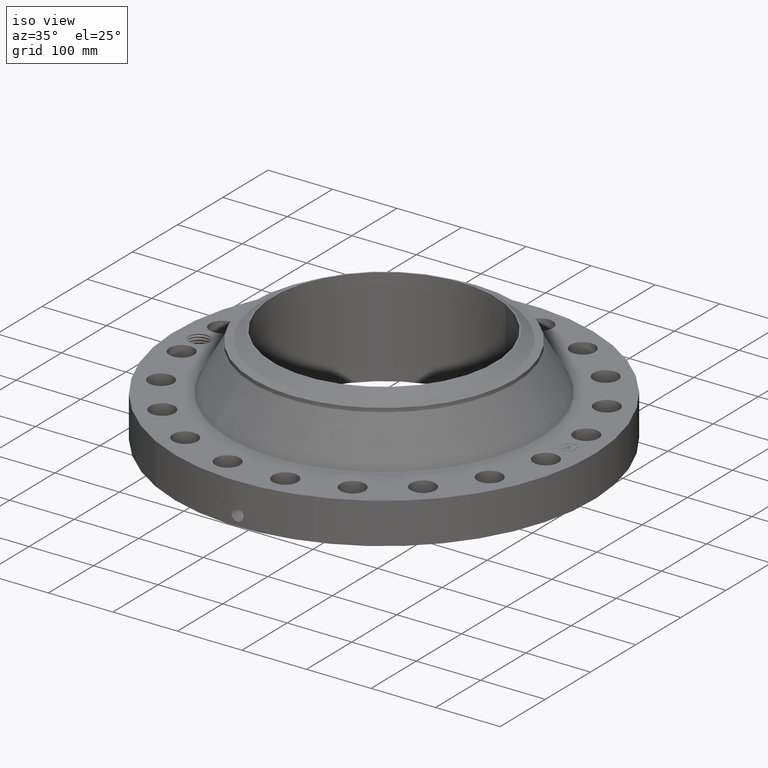
[diagram: clean part render]
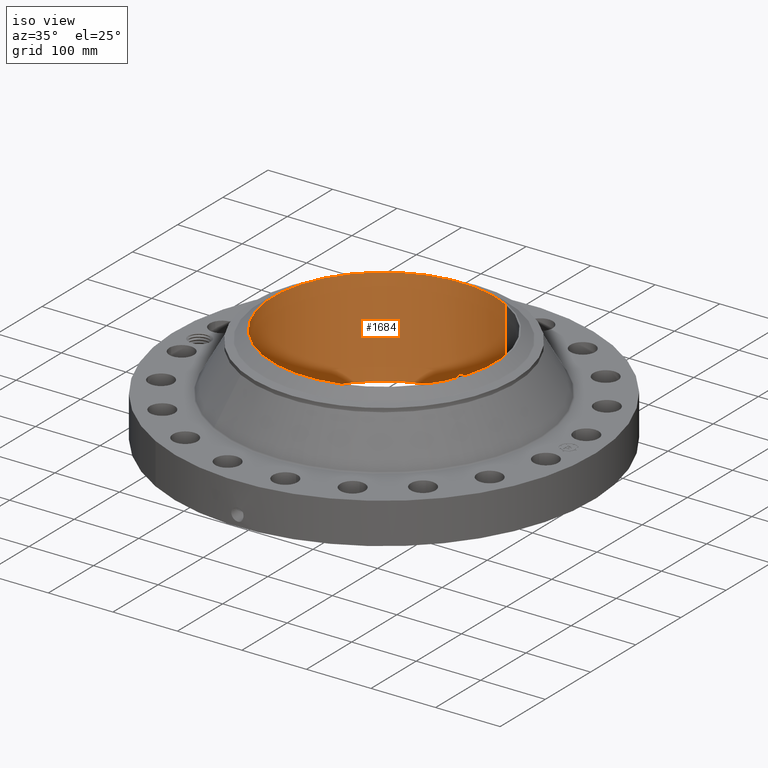
[diagram: same view with one face highlighted and labeled with its STEP entity id]
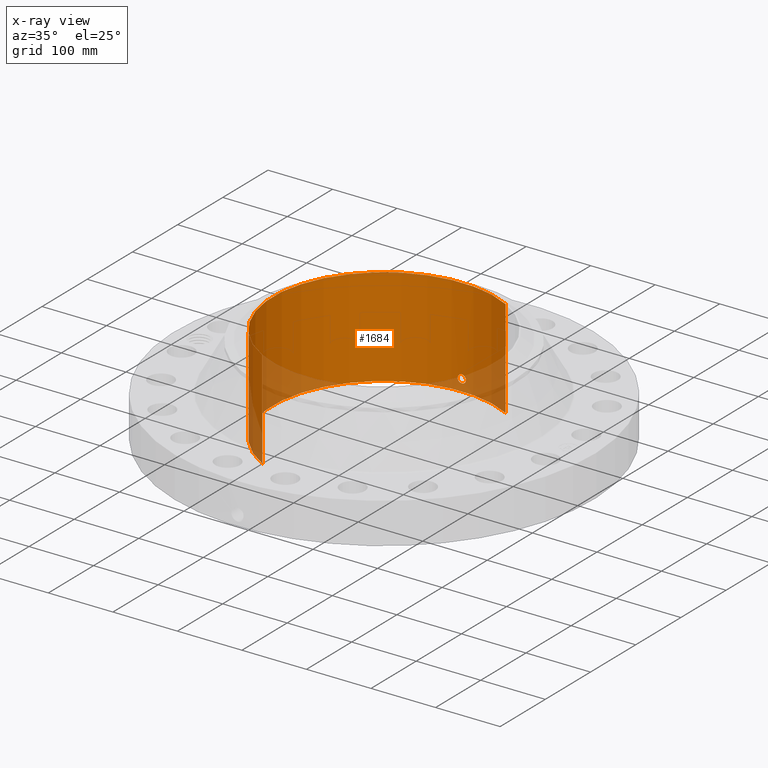
[diagram: x-ray of the same camera — body ghosted, the highlighted face saturated]
A machine part, iso view. The second image highlights one B-rep face of the part: STEP entity #1684.
The next image is the same camera in x-ray: the body ghosted, the highlighted face saturated — about 14% of this face is hidden behind the body in this view.
In plain terms, the highlighted cylindrical surface (partial cylindrical patch) has radius 172.237 mm, axis along (0, 0, -1).
Its self-contained STEP definition (entity closure, byte-faithful):
#262=AXIS2_PLACEMENT_3D('Circle Axis2P3D',#260,#261,$) ;
#1561=AXIS2_PLACEMENT_3D('Cylinder Axis2P3D',#1558,#1559,#1560) ;
#1633=AXIS2_PLACEMENT_3D('Circle Axis2P3D',#1631,#1632,$) ;
#255=CARTESIAN_POINT('Vertex',(3.25098457729,5.9508873522,0.250000000001)) ;
#257=CARTESIAN_POINT('Vertex',(-3.25098457729,-5.9508873522,0.250000000001)) ;
#260=CARTESIAN_POINT('Axis2P3D Location',(0.,0.,0.250000000001)) ;
#1558=CARTESIAN_POINT('Axis2P3D Location',(0.,0.,3.25000000001)) ;
#1567=CARTESIAN_POINT('Vertex',(3.25098457729,5.9508873522,6.25000000002)) ;
#1569=CARTESIAN_POINT('Vertex',(-3.25098457729,-5.9508873522,6.25000000002)) ;
#1572=CARTESIAN_POINT('Line Origine',(3.25098457729,5.9508873522,3.25000000001)) ;
#1577=CARTESIAN_POINT('Line Origine',(-3.25098457729,-5.9508873522,3.25000000001)) ;
#1631=CARTESIAN_POINT('Axis2P3D Location',(0.,0.,6.25000000002)) ;
#1643=CARTESIAN_POINT('Control Point',(0.219395640473,6.7774498562,1.05985638466)) ;
#1644=CARTESIAN_POINT('Control Point',(0.194443648014,6.7782575875,1.10553070049)) ;
#1645=CARTESIAN_POINT('Control Point',(0.157607961708,6.77933506077,1.14470806856)) ;
#1646=CARTESIAN_POINT('Control Point',(0.111114949995,6.78038282213,1.17324017908)) ;
#1647=CARTESIAN_POINT('Control Point',(0.0336823618022,6.78121650962,1.19588127452)) ;
#1648=CARTESIAN_POINT('Control Point',(-0.0446610663606,6.7809285355,1.18805774379)) ;
#1649=CARTESIAN_POINT('Control Point',(-0.070287996878,6.78070497048,1.18204691775)) ;
#1650=CARTESIAN_POINT('Control Point',(-0.143940622501,6.7797169136,1.15422131874)) ;
#1651=CARTESIAN_POINT('Control Point',(-0.2032258772,6.77810387152,1.09951830438)) ;
#1652=CARTESIAN_POINT('Control Point',(-0.232195151277,6.77704557182,1.05328750027)) ;
#1653=CARTESIAN_POINT('Control Point',(-0.255838039687,6.77617515109,0.975137503676)) ;
#1654=CARTESIAN_POINT('Control Point',(-0.24828715891,6.77645290846,0.895764716969)) ;
#1655=CARTESIAN_POINT('Control Point',(-0.242053278353,6.776685565,0.869195213928)) ;
#1656=CARTESIAN_POINT('Control Point',(-0.232318166375,6.77703153575,0.843798140348)) ;
#1657=CARTESIAN_POINT('Control Point',(-0.219395640473,6.7774498562,0.820143615352)) ;
#1658=CARTESIAN_POINT('Vertex',(0.219395640473,6.7774498562,1.05985638466)) ;
#1660=CARTESIAN_POINT('Vertex',(-0.219395640473,6.7774498562,0.820143615352)) ;
#1664=CARTESIAN_POINT('Control Point',(-0.219395640473,6.7774498562,0.820143615352)) ;
#1665=CARTESIAN_POINT('Control Point',(-0.194443648021,6.7782575875,0.774469299535)) ;
#1666=CARTESIAN_POINT('Control Point',(-0.157607961729,6.77933506076,0.735291931471)) ;
#1667=CARTESIAN_POINT('Control Point',(-0.111114949967,6.78038282213,0.706759820918)) ;
#1668=CARTESIAN_POINT('Control Point',(-0.0336823617947,6.78121650962,0.684118725491)) ;
#1669=CARTESIAN_POINT('Control Point',(0.0446610663465,6.7809285355,0.691942256213)) ;
#1670=CARTESIAN_POINT('Control Point',(0.0702879968899,6.78070497048,0.697953082264)) ;
#1671=CARTESIAN_POINT('Control Point',(0.143940622578,6.7797169136,0.725778681304)) ;
#1672=CARTESIAN_POINT('Control Point',(0.203225877315,6.77810387152,0.780481695736)) ;
#1673=CARTESIAN_POINT('Control Point',(0.23219515123,6.77704557182,0.826712499591)) ;
#1674=CARTESIAN_POINT('Control Point',(0.255838039677,6.77617515109,0.904862496197)) ;
#1675=CARTESIAN_POINT('Control Point',(0.24828715892,6.77645290846,0.984235282924)) ;
#1676=CARTESIAN_POINT('Control Point',(0.242053278312,6.776685565,1.01080478619)) ;
#1677=CARTESIAN_POINT('Control Point',(0.232318166347,6.77703153576,1.03620185971)) ;
#1678=CARTESIAN_POINT('Control Point',(0.219395640473,6.7774498562,1.05985638466)) ;
#261=DIRECTION('Axis2P3D Direction',(0.,0.,-0.0393700787402)) ;
#1559=DIRECTION('Axis2P3D Direction',(0.,0.,-0.0393700787402)) ;
#1560=DIRECTION('Axis2P3D XDirection',(-0.0188750212049,-0.0345504945626,0.)) ;
#1573=DIRECTION('Vector Direction',(0.,0.,-0.0393700787402)) ;
#1578=DIRECTION('Vector Direction',(0.,0.,-0.0393700787402)) ;
#1632=DIRECTION('Axis2P3D Direction',(0.,0.,-0.0393700787402)) ;
#1574=VECTOR('Line Direction',#1573,0.0393700787402) ;
#1579=VECTOR('Line Direction',#1578,0.0393700787402) ;
#1637=ORIENTED_EDGE('',*,*,#1635,.F.) ;
#1638=ORIENTED_EDGE('',*,*,#1581,.T.) ;
#1639=ORIENTED_EDGE('',*,*,#264,.T.) ;
#1640=ORIENTED_EDGE('',*,*,#1576,.F.) ;
#1681=ORIENTED_EDGE('',*,*,#1662,.F.) ;
#1682=ORIENTED_EDGE('',*,*,#1679,.F.) ;
#1683=FACE_BOUND('',#1680,.T.) ;
#1684=ADVANCED_FACE('PartBody',(#1641,#1683),#1562,.F.) ;
#1642=B_SPLINE_CURVE_WITH_KNOTS('',5,(#1643,#1644,#1645,#1646,#1647,#1648,#1649,#1650,#1651,#1652,#1653,#1654,#1655,#1656,#1657),.UNSPECIFIED.,.F.,.U.,(6,3,3,3,6),(0.,9.34878302461,14.0226119886,23.3726313278,28.2143244701),.UNSPECIFIED.) ;
#1663=B_SPLINE_CURVE_WITH_KNOTS('',5,(#1664,#1665,#1666,#1667,#1668,#1669,#1670,#1671,#1672,#1673,#1674,#1675,#1676,#1677,#1678),.UNSPECIFIED.,.F.,.U.,(6,3,3,3,6),(0.,9.34878302198,14.0226119848,23.3726313376,28.2143244697),.UNSPECIFIED.) ;
#263=CIRCLE('generated circle',#262,6.78100000003) ;
#1634=CIRCLE('generated circle',#1633,6.78100000003) ;
#1562=CYLINDRICAL_SURFACE('generated cylinder',#1561,6.78100000003) ;
#264=EDGE_CURVE('',#258,#256,#263,.T.) ;
#1576=EDGE_CURVE('',#1568,#256,#1575,.T.) ;
#1581=EDGE_CURVE('',#1570,#258,#1580,.T.) ;
#1635=EDGE_CURVE('',#1570,#1568,#1634,.T.) ;
#1662=EDGE_CURVE('',#1659,#1661,#1642,.T.) ;
#1679=EDGE_CURVE('',#1661,#1659,#1663,.T.) ;
#1636=EDGE_LOOP('',(#1637,#1638,#1639,#1640)) ;
#1680=EDGE_LOOP('',(#1681,#1682)) ;
#1641=FACE_OUTER_BOUND('',#1636,.T.) ;
#1575=LINE('Line',#1572,#1574) ;
#1580=LINE('Line',#1577,#1579) ;
#256=VERTEX_POINT('',#255) ;
#258=VERTEX_POINT('',#257) ;
#1568=VERTEX_POINT('',#1567) ;
#1570=VERTEX_POINT('',#1569) ;
#1659=VERTEX_POINT('',#1658) ;
#1661=VERTEX_POINT('',#1660) ;